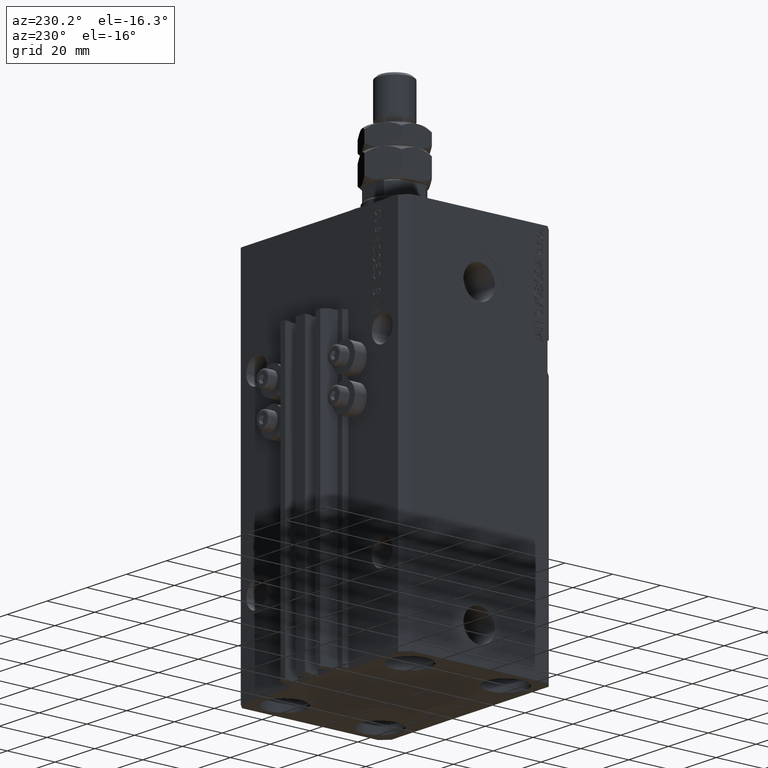
[diagram: clean part render]
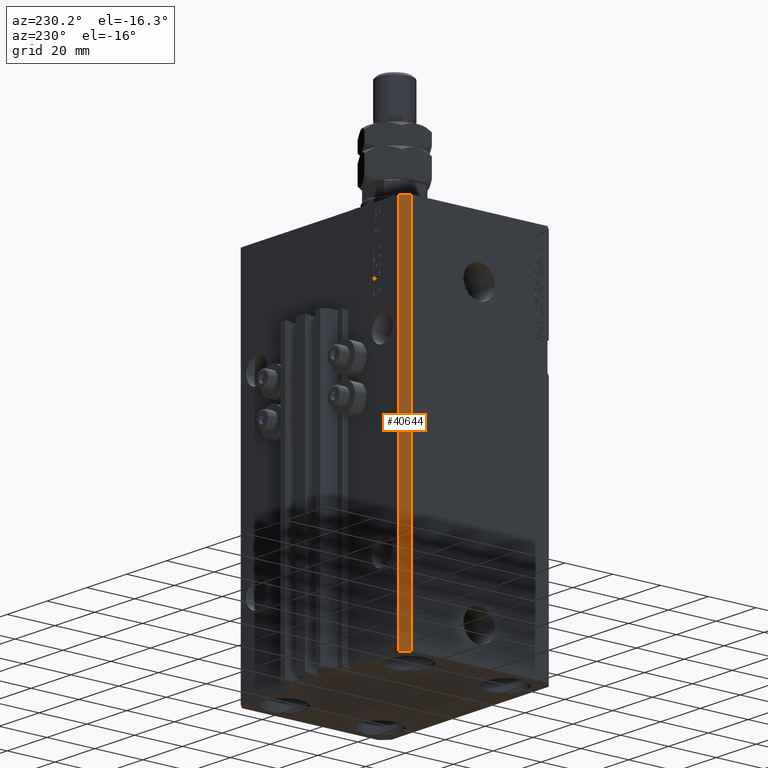
[diagram: same view with one face highlighted and labeled with its STEP entity id]
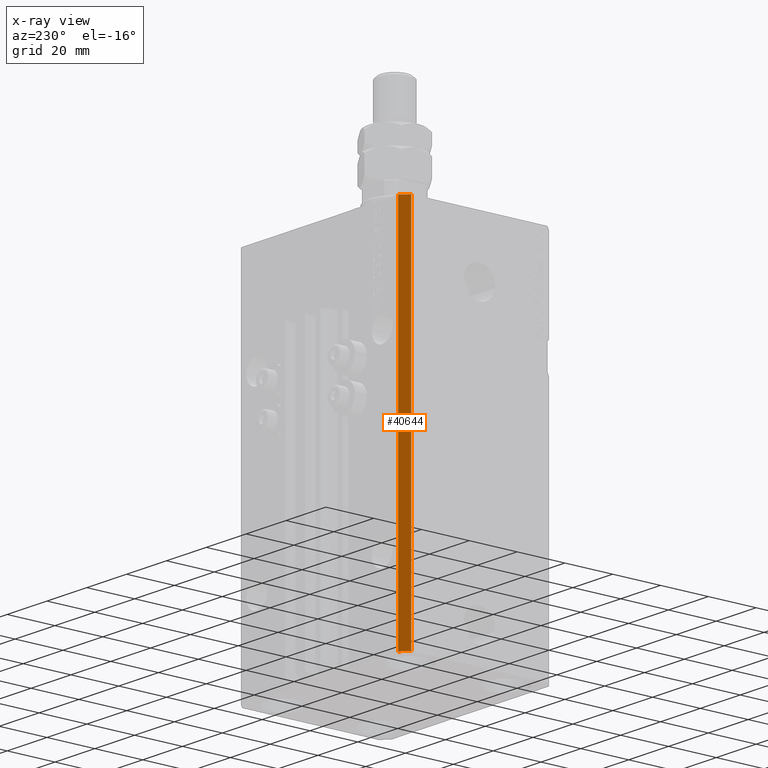
[diagram: x-ray of the same camera — body ghosted, the highlighted face saturated]
A machine part, auxiliary view. The second image highlights one B-rep face of the part: STEP entity #40644.
The next image is the same camera in x-ray: the body ghosted, the highlighted face saturated — about 0% of this face is hidden behind the body in this view.
In plain terms, the highlighted planar face has unit normal (-0.7071, 0.7071, 0).
Its self-contained STEP definition (entity closure, byte-faithful):
#1204 = VECTOR ( 'NONE', #16374, 1000.000000000000000 ) ;
#2093 = EDGE_CURVE ( 'NONE', #5836, #10382, #16422, .T. ) ;
#2863 = EDGE_CURVE ( 'NONE', #5836, #48547, #4244, .T. ) ;
#3122 = DIRECTION ( 'NONE',  ( -0.7071067811865471286, -0.7071067811865479058, 0.000000000000000000 ) ) ;
#4244 = LINE ( 'NONE', #31432, #6926 ) ;
#4749 = CARTESIAN_POINT ( 'NONE',  ( -39.50000000000000711, 31.50000000000000000, -153.0000000000000000 ) ) ;
#5255 = VECTOR ( 'NONE', #31931, 1000.000000000000000 ) ;
#5836 = VERTEX_POINT ( 'NONE', #37465 ) ;
#6926 = VECTOR ( 'NONE', #12118, 1000.000000000000000 ) ;
#7348 = ORIENTED_EDGE ( 'NONE', *, *, #22528, .T. ) ;
#7717 = EDGE_LOOP ( 'NONE', ( #39826, #35106, #34330, #7348 ) ) ;
#8028 = PLANE ( 'NONE',  #41203 ) ;
#10382 = VERTEX_POINT ( 'NONE', #49391 ) ;
#12118 = DIRECTION ( 'NONE',  ( -0.7071067811865471286, -0.7071067811865479058, 0.000000000000000000 ) ) ;
#16130 = VECTOR ( 'NONE', #3122, 1000.000000000000000 ) ;
#16374 = DIRECTION ( 'NONE',  ( 0.000000000000000000, 0.000000000000000000, 1.000000000000000000 ) ) ;
#16422 = LINE ( 'NONE', #4749, #5255 ) ;
#18362 = CARTESIAN_POINT ( 'NONE',  ( -39.50000000000000711, 31.50000000000000000, 0.000000000000000000 ) ) ;
#22329 = CARTESIAN_POINT ( 'NONE',  ( -42.50000000000000000, 28.50000000000000000, -153.0000000000000000 ) ) ;
#22528 = EDGE_CURVE ( 'NONE', #48547, #42474, #43047, .T. ) ;
#24034 = CARTESIAN_POINT ( 'NONE',  ( -42.50000000000000000, 28.50000000000000000, 0.000000000000000000 ) ) ;
#31432 = CARTESIAN_POINT ( 'NONE',  ( -39.50000000000000711, 31.50000000000000000, -153.0000000000000000 ) ) ;
#31931 = DIRECTION ( 'NONE',  ( 0.000000000000000000, 0.000000000000000000, 1.000000000000000000 ) ) ;
#34330 = ORIENTED_EDGE ( 'NONE', *, *, #2863, .T. ) ;
#35106 = ORIENTED_EDGE ( 'NONE', *, *, #2093, .F. ) ;
#37465 = CARTESIAN_POINT ( 'NONE',  ( -39.50000000000000711, 31.50000000000000000, -153.0000000000000000 ) ) ;
#38534 = DIRECTION ( 'NONE',  ( -0.7071067811865479058, 0.7071067811865471286, 0.000000000000000000 ) ) ;
#39826 = ORIENTED_EDGE ( 'NONE', *, *, #43488, .F. ) ;
#40644 = ADVANCED_FACE ( 'NONE', ( #41584 ), #8028, .T. ) ;
#41203 = AXIS2_PLACEMENT_3D ( 'NONE', #46621, #38534, #42568 ) ;
#41584 = FACE_OUTER_BOUND ( 'NONE', #7717, .T. ) ;
#42474 = VERTEX_POINT ( 'NONE', #24034 ) ;
#42568 = DIRECTION ( 'NONE',  ( -0.7071067811865471286, -0.7071067811865479058, 0.000000000000000000 ) ) ;
#43047 = LINE ( 'NONE', #47853, #1204 ) ;
#43488 = EDGE_CURVE ( 'NONE', #10382, #42474, #50085, .T. ) ;
#46621 = CARTESIAN_POINT ( 'NONE',  ( -39.50000000000000711, 31.50000000000000000, -153.0000000000000000 ) ) ;
#47853 = CARTESIAN_POINT ( 'NONE',  ( -42.50000000000000000, 28.50000000000000000, -153.0000000000000000 ) ) ;
#48547 = VERTEX_POINT ( 'NONE', #22329 ) ;
#49391 = CARTESIAN_POINT ( 'NONE',  ( -39.50000000000000711, 31.50000000000000000, 0.000000000000000000 ) ) ;
#50085 = LINE ( 'NONE', #18362, #16130 ) ;